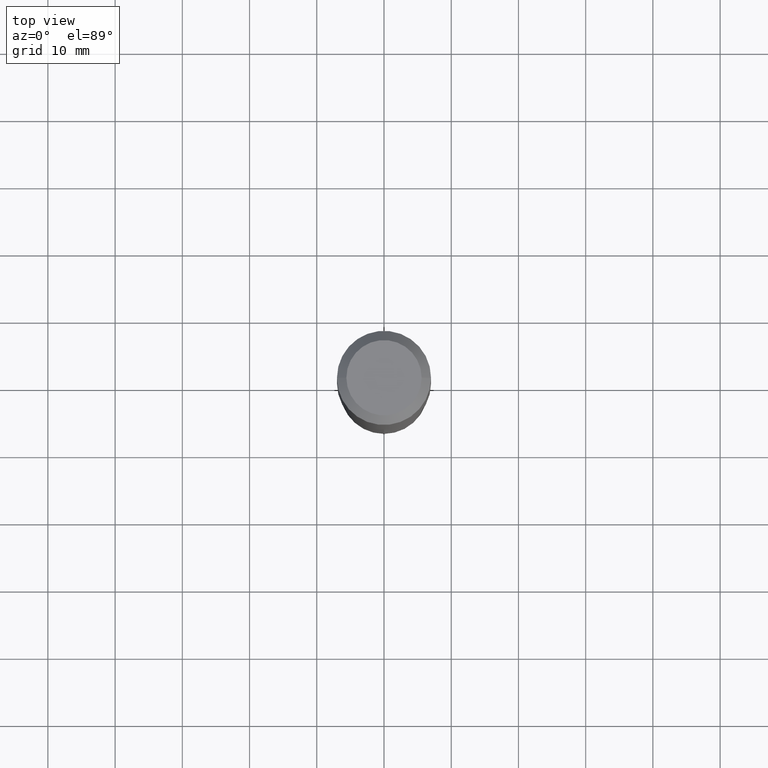
[diagram: clean part render]
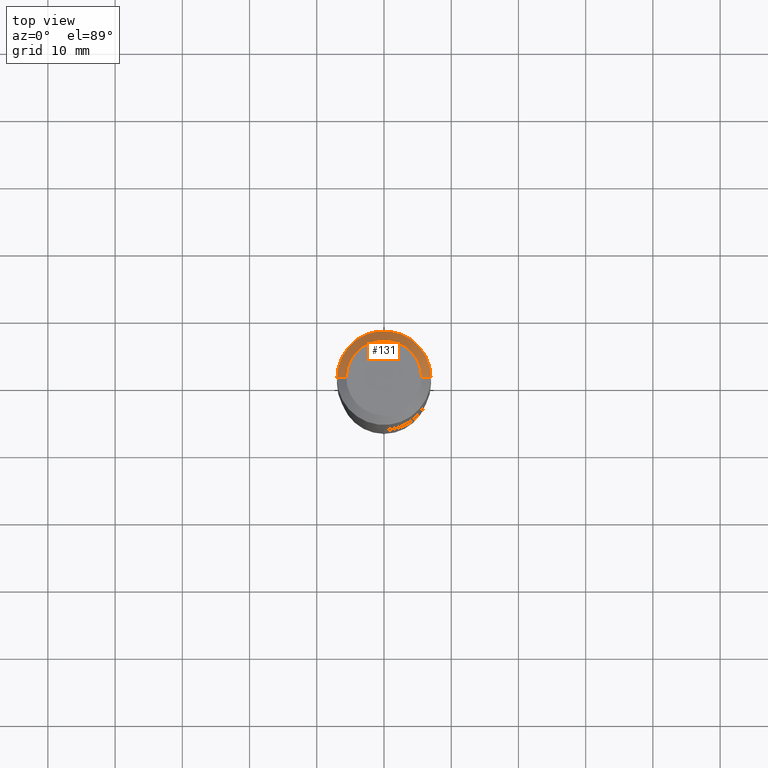
[diagram: same view with one face highlighted and labeled with its STEP entity id]
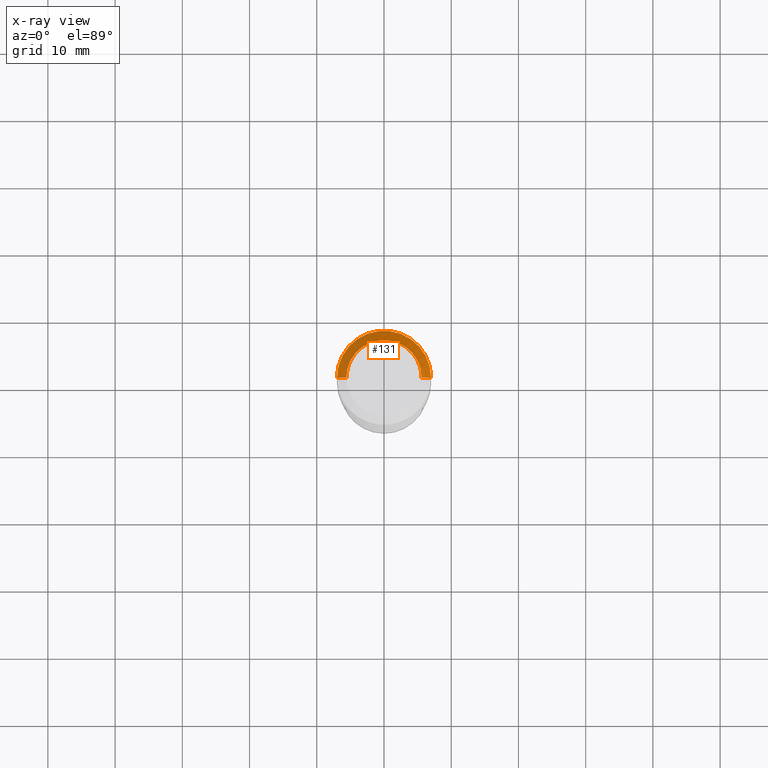
[diagram: x-ray of the same camera — body ghosted, the highlighted face saturated]
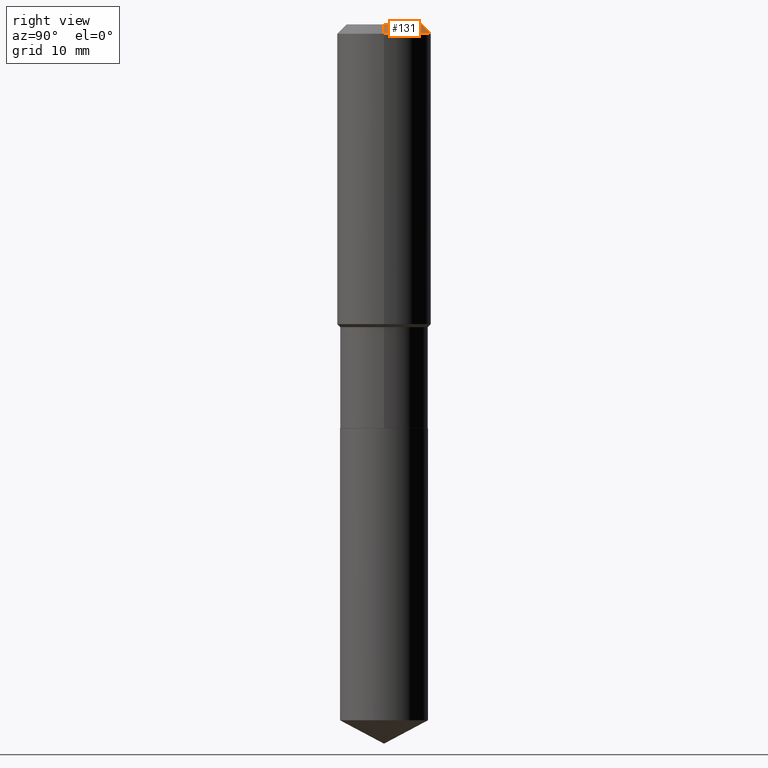
[diagram: same view with one face highlighted and labeled with its STEP entity id]
A machine part, top view. The second image highlights one B-rep face of the part: STEP entity #131.
The next image is the same camera in x-ray: the body ghosted, the highlighted face saturated — about 0% of this face is hidden behind the body in this view.
A second angle (right view) of the same face is appended — the face is thin or edge-on in the first view.
In plain terms, the highlighted conical surface has half-angle 45 deg.
Its self-contained STEP definition (entity closure, byte-faithful):
#1 = LINE ( 'NONE', #110, #404 ) ;
#5 = CIRCLE ( 'NONE', #18, 0.2204800000000000093 ) ;
#18 = AXIS2_PLACEMENT_3D ( 'NONE', #30, #303, #74 ) ;
#27 = VECTOR ( 'NONE', #61, 39.37007874015748143 ) ;
#30 = CARTESIAN_POINT ( 'NONE',  ( -9.439721640706190018E-47, 1.347742071746724849E-32, 3.860086710912454339E-18 ) ) ;
#58 = CONICAL_SURFACE ( 'NONE', #221, 0.2756000000000000116, 0.7853981633974452814 ) ;
#61 = DIRECTION ( 'NONE',  ( 0.7071067811865453523, -7.319954787623248157E-15, -0.7071067811865496822 ) ) ;
#63 = ORIENTED_EDGE ( 'NONE', *, *, #411, .T. ) ;
#74 = DIRECTION ( 'NONE',  ( 1.000000000000000000, -6.982962677686266711E-15, 4.876132675269083677E-29 ) ) ;
#110 = CARTESIAN_POINT ( 'NONE',  ( -0.2756000000000000116, 1.732054062573300039E-15, -0.05512000000000035621 ) ) ;
#126 = CARTESIAN_POINT ( 'NONE',  ( -0.2204800000000000093, 1.635828836874783961E-15, 3.860086710901350968E-18 ) ) ;
#131 = ADVANCED_FACE ( 'NONE', ( #346 ), #58, .T. ) ;
#174 = EDGE_LOOP ( 'NONE', ( #296, #63, #212, #466 ) ) ;
#212 = ORIENTED_EDGE ( 'NONE', *, *, #486, .T. ) ;
#216 = VERTEX_POINT ( 'NONE', #126 ) ;
#221 = AXIS2_PLACEMENT_3D ( 'NONE', #451, #224, #379 ) ;
#224 = DIRECTION ( 'NONE',  ( 2.445468806185136597E-29, -3.491481338843145583E-15, -1.000000000000000000 ) ) ;
#248 = CARTESIAN_POINT ( 'NONE',  ( 0.2756000000000000116, -2.083203699582869812E-15, -0.05512000000000035621 ) ) ;
#261 = DIRECTION ( 'NONE',  ( -0.7071067811865453523, 2.468850131082234184E-15, -0.7071067811865496822 ) ) ;
#270 = CARTESIAN_POINT ( 'NONE',  ( 0.2204800000000000093, -1.797903149065768707E-15, 3.860086710924123164E-18 ) ) ;
#272 = AXIS2_PLACEMENT_3D ( 'NONE', #300, #384, #380 ) ;
#274 = VERTEX_POINT ( 'NONE', #396 ) ;
#296 = ORIENTED_EDGE ( 'NONE', *, *, #464, .F. ) ;
#300 = CARTESIAN_POINT ( 'NONE',  ( 1.347942405969256063E-30, -1.924504513970354330E-16, -0.05512000000000035621 ) ) ;
#303 = DIRECTION ( 'NONE',  ( -2.445468806185136597E-29, 3.491481338843145583E-15, 1.000000000000000000 ) ) ;
#306 = CIRCLE ( 'NONE', #272, 0.2756000000000000116 ) ;
#346 = FACE_OUTER_BOUND ( 'NONE', #174, .T. ) ;
#379 = DIRECTION ( 'NONE',  ( -1.000000000000000000, 6.982962677686269077E-15, 0.000000000000000000 ) ) ;
#380 = DIRECTION ( 'NONE',  ( 1.000000000000000000, -6.982962677686265922E-15, 0.000000000000000000 ) ) ;
#384 = DIRECTION ( 'NONE',  ( -2.445468806185136597E-29, 3.491481338843145583E-15, 1.000000000000000000 ) ) ;
#396 = CARTESIAN_POINT ( 'NONE',  ( -0.2756000000000000116, -1.202268042979367764E-15, -0.05512000000000035621 ) ) ;
#404 = VECTOR ( 'NONE', #261, 39.37007874015748143 ) ;
#411 = EDGE_CURVE ( 'NONE', #482, #418, #437, .T. ) ;
#418 = VERTEX_POINT ( 'NONE', #434 ) ;
#434 = CARTESIAN_POINT ( 'NONE',  ( 0.2756000000000000116, -2.116954965367370658E-15, -0.05512000000000035621 ) ) ;
#437 = LINE ( 'NONE', #248, #27 ) ;
#451 = CARTESIAN_POINT ( 'NONE',  ( 1.347942405969256063E-30, -1.924504513970354330E-16, -0.05512000000000035621 ) ) ;
#464 = EDGE_CURVE ( 'NONE', #482, #216, #5, .T. ) ;
#466 = ORIENTED_EDGE ( 'NONE', *, *, #469, .F. ) ;
#469 = EDGE_CURVE ( 'NONE', #216, #274, #1, .T. ) ;
#482 = VERTEX_POINT ( 'NONE', #270 ) ;
#486 = EDGE_CURVE ( 'NONE', #418, #274, #306, .T. ) ;